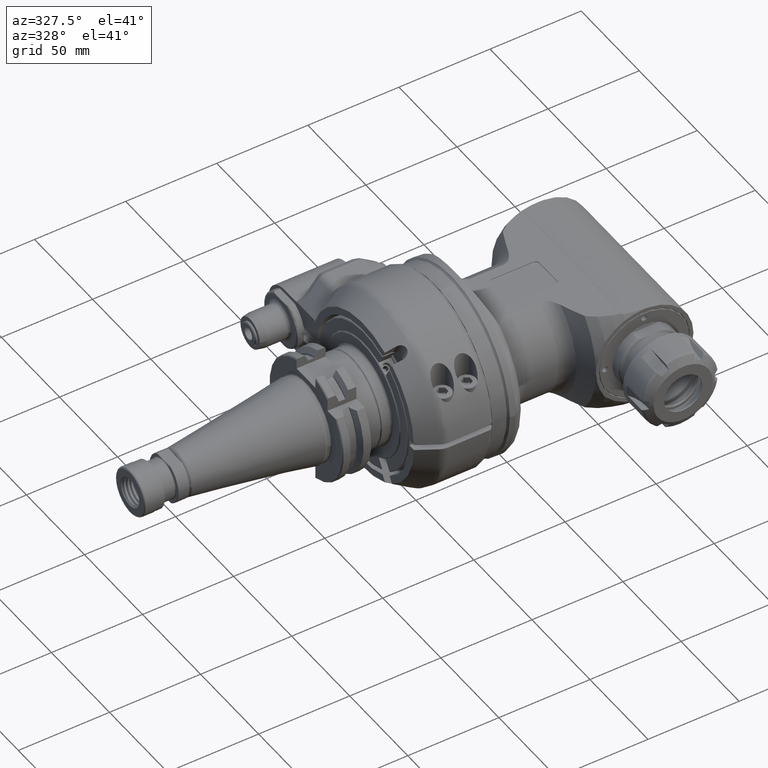
[diagram: clean part render]
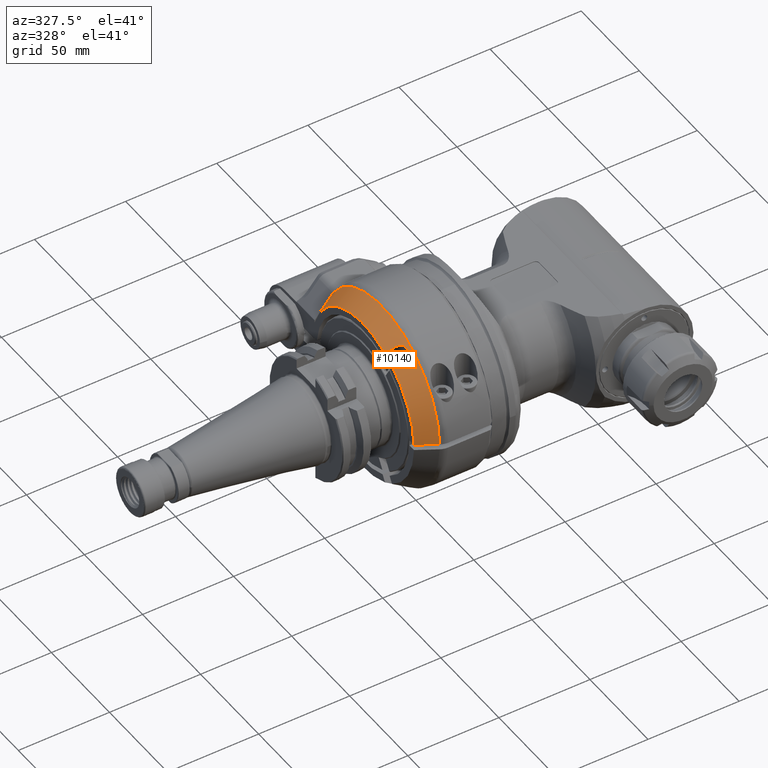
[diagram: same view with one face highlighted and labeled with its STEP entity id]
A machine part, auxiliary view. The second image highlights one B-rep face of the part: STEP entity #10140.
In plain terms, the highlighted conical surface has half-angle 30 deg.
Its self-contained STEP definition (entity closure, byte-faithful):
#222=(
BOUNDED_CURVE()
B_SPLINE_CURVE(2,(#14866,#14867,#14868),.UNSPECIFIED.,.F.,.F.)
B_SPLINE_CURVE_WITH_KNOTS((3,3),(-4.92391023083954,-2.81130786844121),
 .UNSPECIFIED.)
CURVE()
GEOMETRIC_REPRESENTATION_ITEM()
RATIONAL_B_SPLINE_CURVE((1.0074989594549,1.03062027413363,1.03252076511009))
REPRESENTATION_ITEM('')
);
#671=CONICAL_SURFACE('',#10860,46.96410161514,0.523598775598299);
#818=FACE_OUTER_BOUND('',#1455,.T.);
#1455=EDGE_LOOP('',(#6944,#6945,#6946,#6947,#6948,#6949,#6950,#6951));
#2164=CIRCLE('',#10861,49.92820323028);
#2165=CIRCLE('',#10862,44.);
#2166=CIRCLE('',#10863,44.);
#2629=B_SPLINE_CURVE_WITH_KNOTS('',3,(#15133,#15134,#15135,#15136,#15137,
#15138,#15139,#15140,#15141,#15142,#15143,#15144,#15145,#15146,#15147,#15148,
#15149,#15150),.UNSPECIFIED.,.F.,.F.,(4,2,2,2,2,2,2,2,4),(1.11206982951603,
1.24885677734264,1.4029266724495,1.5444028479349,1.68587902342029,1.82735519890569,
1.96883137439109,2.12290126949794,2.25968821731982),.UNSPECIFIED.);
#2631=B_SPLINE_CURVE_WITH_KNOTS('',3,(#15177,#15178,#15179,#15180,#15181,
#15182,#15183,#15184,#15185,#15186),.UNSPECIFIED.,.F.,.F.,(4,3,3,4),(0.,
0.3333333333333,0.6666666666667,1.),.UNSPECIFIED.);
#2633=B_SPLINE_CURVE_WITH_KNOTS('',3,(#15204,#15205,#15206,#15207,#15208,
#15209,#15210,#15211,#15212,#15213),.UNSPECIFIED.,.F.,.F.,(4,3,3,4),(0.,
0.3333333333333,0.6666666666667,1.),.UNSPECIFIED.);
#2634=B_SPLINE_CURVE_WITH_KNOTS('',3,(#15215,#15216,#15217,#15218,#15219,
#15220,#15221,#15222,#15223,#15224),.UNSPECIFIED.,.F.,.F.,(4,3,3,4),(0.,
0.3333333333333,0.6666666666667,1.),.UNSPECIFIED.);
#4187=VERTEX_POINT('',#14863);
#4188=VERTEX_POINT('',#14865);
#4229=VERTEX_POINT('',#15131);
#4230=VERTEX_POINT('',#15132);
#4235=VERTEX_POINT('',#15175);
#4236=VERTEX_POINT('',#15176);
#4239=VERTEX_POINT('',#15202);
#4240=VERTEX_POINT('',#15214);
#5224=EDGE_CURVE('',#4187,#4188,#222,.T.);
#5286=EDGE_CURVE('',#4229,#4230,#2629,.F.);
#5295=EDGE_CURVE('',#4235,#4236,#2631,.T.);
#5300=EDGE_CURVE('',#4188,#4236,#2164,.T.);
#5301=EDGE_CURVE('',#4239,#4187,#2165,.T.);
#5302=EDGE_CURVE('',#4239,#4230,#2633,.T.);
#5303=EDGE_CURVE('',#4229,#4240,#2634,.T.);
#5304=EDGE_CURVE('',#4235,#4240,#2166,.T.);
#6944=ORIENTED_EDGE('',*,*,#5300,.F.);
#6945=ORIENTED_EDGE('',*,*,#5224,.F.);
#6946=ORIENTED_EDGE('',*,*,#5301,.F.);
#6947=ORIENTED_EDGE('',*,*,#5302,.T.);
#6948=ORIENTED_EDGE('',*,*,#5286,.F.);
#6949=ORIENTED_EDGE('',*,*,#5303,.T.);
#6950=ORIENTED_EDGE('',*,*,#5304,.F.);
#6951=ORIENTED_EDGE('',*,*,#5295,.T.);
#10140=ADVANCED_FACE('',(#818),#671,.T.);
#10860=AXIS2_PLACEMENT_3D('',#15200,#12072,#12073);
#10861=AXIS2_PLACEMENT_3D('',#15201,#12074,#12075);
#10862=AXIS2_PLACEMENT_3D('',#15203,#12076,#12077);
#10863=AXIS2_PLACEMENT_3D('',#15225,#12078,#12079);
#12072=DIRECTION('center_axis',(1.,0.,0.));
#12073=DIRECTION('ref_axis',(0.,-1.,0.));
#12074=DIRECTION('center_axis',(1.,0.,0.));
#12075=DIRECTION('ref_axis',(0.,0.836200730225418,0.548423503116412));
#12076=DIRECTION('center_axis',(-1.,0.,0.));
#12077=DIRECTION('ref_axis',(0.,-0.429527235513105,0.90305390423411));
#12078=DIRECTION('center_axis',(-1.,0.,0.));
#12079=DIRECTION('ref_axis',(0.,-0.999418736024773,0.0340909090909091));
#14863=CARTESIAN_POINT('',(-51.5,41.75,13.89019438309));
#14865=CARTESIAN_POINT('',(-41.23205080757,41.75,27.38180011986));
#14866=CARTESIAN_POINT('Ctrl Pts',(-51.4999999999926,41.75,13.8901943831015));
#14867=CARTESIAN_POINT('Ctrl Pts',(-48.0442956678849,41.75,20.2102413125831));
#14868=CARTESIAN_POINT('Ctrl Pts',(-41.2320508075673,41.75,27.3818001198562));
#15131=CARTESIAN_POINT('',(-46.49999999996,-26.40905638146,38.74182743265));
#15132=CARTESIAN_POINT('',(-46.5,-20.34687855495,42.24182743261));
#15133=CARTESIAN_POINT('Ctrl Pts',(-46.5000000000022,-20.3468785549539,
42.2418274326121));
#15134=CARTESIAN_POINT('Ctrl Pts',(-46.0992085079171,-20.4629008008145,
42.4427838572514));
#15135=CARTESIAN_POINT('Ctrl Pts',(-45.6780271021369,-20.6496060415951,
42.6229397461814));
#15136=CARTESIAN_POINT('Ctrl Pts',(-44.8336229766582,-21.1765134567461,
42.9080443216851));
#15137=CARTESIAN_POINT('Ctrl Pts',(-44.416786404141,-21.5338827677997,43.000036123302));
#15138=CARTESIAN_POINT('Ctrl Pts',(-43.7689100689263,-22.2748250788787,
43.0423244163336));
#15139=CARTESIAN_POINT('Ctrl Pts',(-43.4858969585476,-22.7012115036421,
43.0050112903121));
#15140=CARTESIAN_POINT('Ctrl Pts',(-43.1011571537055,-23.5864558934365,
42.779754686541));
#15141=CARTESIAN_POINT('Ctrl Pts',(-43.,-24.0453321040545,42.5909113923236));
#15142=CARTESIAN_POINT('Ctrl Pts',(-43.,-24.8621451840586,42.1193241407056));
#15143=CARTESIAN_POINT('Ctrl Pts',(-43.1011571537054,-25.2551263794943,
41.8163473322267));
#15144=CARTESIAN_POINT('Ctrl Pts',(-43.4858969585476,-25.8928265156274,
41.1623315039927));
#15145=CARTESIAN_POINT('Ctrl Pts',(-43.7689100689263,-26.1383338430383,
40.8117265913295));
#15146=CARTESIAN_POINT('Ctrl Pts',(-44.416786404141,-26.4721822625297,40.1489075806805));
#15147=CARTESIAN_POINT('Ctrl Pts',(-44.8336229766582,-26.5711996809163,
39.7934207779667));
#15148=CARTESIAN_POINT('Ctrl Pts',(-45.6780271021231,-26.5877455833702,
39.1945532832615));
#15149=CARTESIAN_POINT('Ctrl Pts',(-46.0992085078879,-26.5250786273105,
38.9427838572684));
#15150=CARTESIAN_POINT('Ctrl Pts',(-46.4999999999604,-26.409056381457,38.7418274326329));
#15175=CARTESIAN_POINT('',(-51.5,-43.97442438509,1.5));
#15176=CARTESIAN_POINT('',(-41.2320587089715,-49.9056612221311,1.50000006858959));
#15177=CARTESIAN_POINT('Ctrl Pts',(-51.5,-43.97442438509,1.5));
#15178=CARTESIAN_POINT('Ctrl Pts',(-50.3591242554,-44.63349239584,1.5));
#15179=CARTESIAN_POINT('Ctrl Pts',(-49.2182445912652,-45.2925454352499,
1.5));
#15180=CARTESIAN_POINT('Ctrl Pts',(-48.0773635402228,-45.9515842405682,
1.5));
#15181=CARTESIAN_POINT('Ctrl Pts',(-46.9364824891801,-46.6106230458866,
1.5));
#15182=CARTESIAN_POINT('Ctrl Pts',(-45.7956000512299,-47.2696476171134,
1.5));
#15183=CARTESIAN_POINT('Ctrl Pts',(-44.6547122553372,-47.9286620207944,
1.5));
#15184=CARTESIAN_POINT('Ctrl Pts',(-43.5138244594448,-48.5876764244751,
1.5));
#15185=CARTESIAN_POINT('Ctrl Pts',(-42.37293130561,-49.24668066061,1.5));
#15186=CARTESIAN_POINT('Ctrl Pts',(-41.23206660847,-49.90565666041,1.5));
#15200=CARTESIAN_POINT('Origin',(-46.36602540378,0.,0.));
#15201=CARTESIAN_POINT('Origin',(-41.23205080757,0.,0.));
#15202=CARTESIAN_POINT('',(-51.5,-18.89919836257,39.7343717863));
#15203=CARTESIAN_POINT('Origin',(-51.5,0.,0.));
#15204=CARTESIAN_POINT('Ctrl Pts',(-51.5000000000014,-18.8991983625711,
39.7343717863022));
#15205=CARTESIAN_POINT('Ctrl Pts',(-50.9444542650933,-19.0600803989624,
40.0130276473551));
#15206=CARTESIAN_POINT('Ctrl Pts',(-50.388904658883,-19.2209523393287,40.2916660666116));
#15207=CARTESIAN_POINT('Ctrl Pts',(-49.8333517949314,-19.3818147452656,
40.5702879469609));
#15208=CARTESIAN_POINT('Ctrl Pts',(-49.2777989309796,-19.5426771512026,
40.8489098273103));
#15209=CARTESIAN_POINT('Ctrl Pts',(-48.7222428089151,-19.7035300221847,
41.12751516829));
#15210=CARTESIAN_POINT('Ctrl Pts',(-48.1666839961689,-19.8643738399584,
41.4061048113134));
#15211=CARTESIAN_POINT('Ctrl Pts',(-47.6111251834229,-20.0252176577319,
41.6846944543368));
#15212=CARTESIAN_POINT('Ctrl Pts',(-47.0555636796713,-20.186052421901,41.963268398972));
#15213=CARTESIAN_POINT('Ctrl Pts',(-46.5000000000021,-20.3468785549516,
42.2418274326133));
#15214=CARTESIAN_POINT('',(-51.5,-24.96137618907,36.2343717863));
#15215=CARTESIAN_POINT('Ctrl Pts',(-46.4999999999533,-26.4090563814534,
38.7418274326404));
#15216=CARTESIAN_POINT('Ctrl Pts',(-47.0555636796356,-26.2482302483957,
38.4632683989937));
#15217=CARTESIAN_POINT('Ctrl Pts',(-47.6111251834248,-26.0873955175853,
38.1846944350734));
#15218=CARTESIAN_POINT('Ctrl Pts',(-48.1666839961872,-25.9265517183778,
37.9061047813199));
#15219=CARTESIAN_POINT('Ctrl Pts',(-48.7222428089498,-25.7657079191702,
37.6275151275664));
#15220=CARTESIAN_POINT('Ctrl Pts',(-49.2777989310094,-25.6048550517416,
37.3489097845386));
#15221=CARTESIAN_POINT('Ctrl Pts',(-49.8333517949564,-25.4439926282768,
37.0702879143124));
#15222=CARTESIAN_POINT('Ctrl Pts',(-50.3889046589031,-25.283130204812,36.7916660440862));
#15223=CARTESIAN_POINT('Ctrl Pts',(-50.9444542651086,-25.1222582254486,
36.5130276473481));
#15224=CARTESIAN_POINT('Ctrl Pts',(-51.4999999999959,-24.9613761890659,
36.2343717863041));
#15225=CARTESIAN_POINT('Origin',(-51.5,0.,0.));